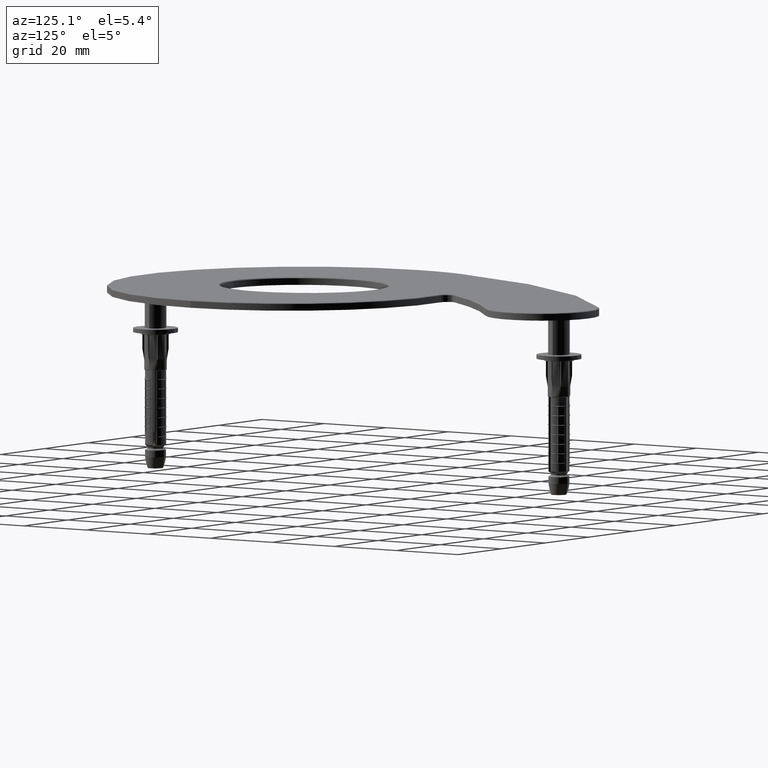
[diagram: clean part render]
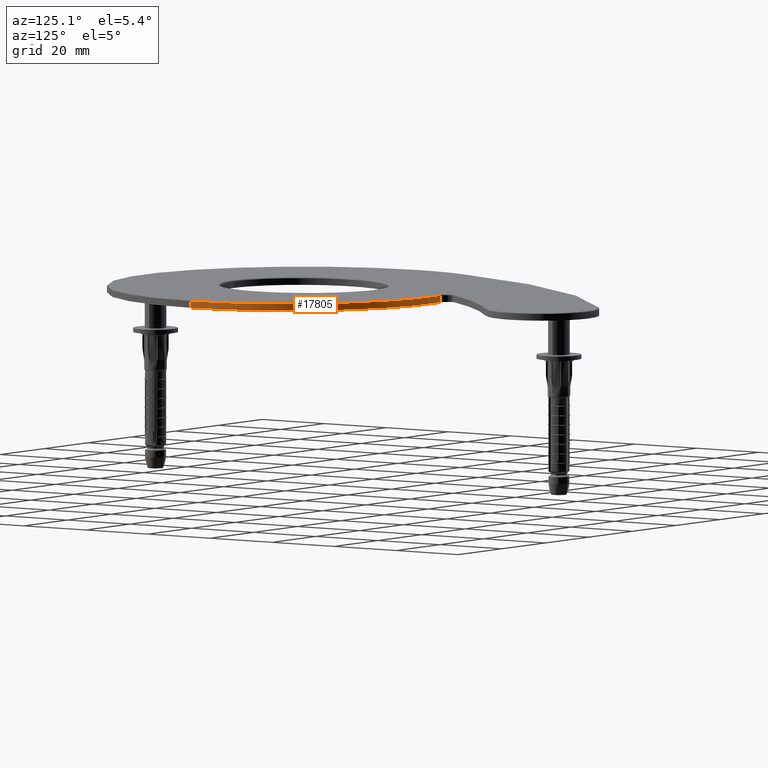
[diagram: same view with one face highlighted and labeled with its STEP entity id]
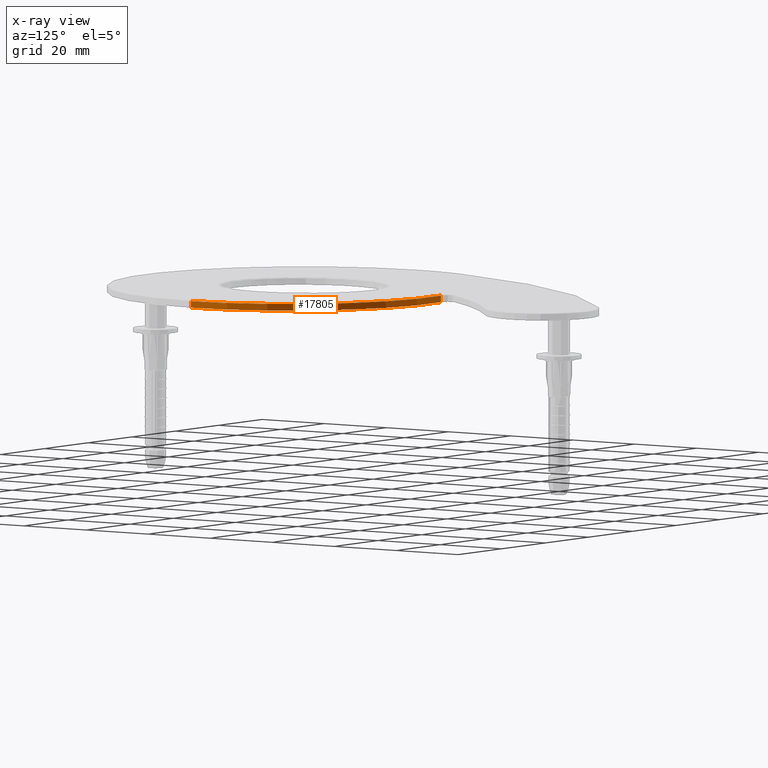
[diagram: x-ray of the same camera — body ghosted, the highlighted face saturated]
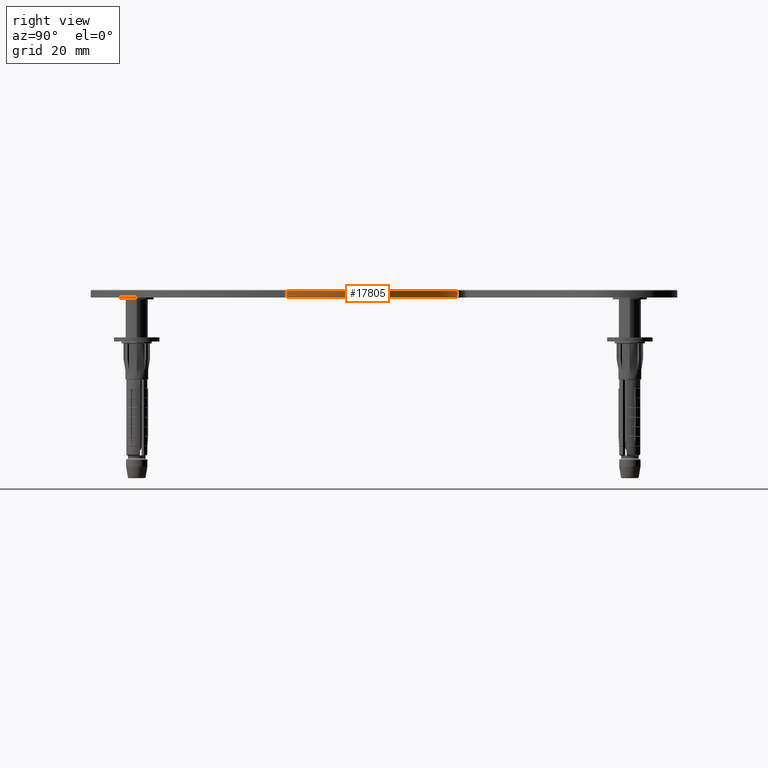
[diagram: same view with one face highlighted and labeled with its STEP entity id]
A machine part, auxiliary view. The second image highlights one B-rep face of the part: STEP entity #17805.
The next image is the same camera in x-ray: the body ghosted, the highlighted face saturated — about 0% of this face is hidden behind the body in this view.
A second angle (right view) of the same face is appended — the face is thin or edge-on in the first view.
In plain terms, the highlighted cylindrical surface (partial cylindrical patch) has radius 45.3165 mm, axis along (-0, -0, -1).
Its self-contained STEP definition (entity closure, byte-faithful):
#246 = CARTESIAN_POINT ( 'NONE',  ( 1.438146046878017392, 97.01194327648146043, 0.000000000000000000 ) ) ;
#639 = VERTEX_POINT ( 'NONE', #31760 ) ;
#934 = CARTESIAN_POINT ( 'NONE',  ( 6.683464366726754591, 52.00000000000002842, 0.000000000000000000 ) ) ;
#1706 = DIRECTION ( 'NONE',  ( -0.000000000000000000, -0.000000000000000000, -1.000000000000000000 ) ) ;
#1772 = ORIENTED_EDGE ( 'NONE', *, *, #19283, .T. ) ;
#1813 = AXIS2_PLACEMENT_3D ( 'NONE', #4889, #1706, #4764 ) ;
#2525 = DIRECTION ( 'NONE',  ( -0.000000000000000000, -0.000000000000000000, -1.000000000000000000 ) ) ;
#2936 = EDGE_CURVE ( 'NONE', #639, #19515, #33396, .T. ) ;
#3904 = EDGE_CURVE ( 'NONE', #37127, #19515, #5210, .T. ) ;
#4607 = DIRECTION ( 'NONE',  ( -1.000000000000000000, 0.000000000000000000, 0.000000000000000000 ) ) ;
#4764 = DIRECTION ( 'NONE',  ( -1.000000000000000000, 0.000000000000000000, 0.000000000000000000 ) ) ;
#4889 = CARTESIAN_POINT ( 'NONE',  ( 6.683464366726754591, 52.00000000000002842, 1.750000000000000000 ) ) ;
#5210 = LINE ( 'NONE', #35977, #34401 ) ;
#6138 = AXIS2_PLACEMENT_3D ( 'NONE', #38407, #10627, #4607 ) ;
#6576 = ORIENTED_EDGE ( 'NONE', *, *, #2936, .T. ) ;
#10627 = DIRECTION ( 'NONE',  ( -0.000000000000000000, -0.000000000000000000, -1.000000000000000000 ) ) ;
#12075 = DIRECTION ( 'NONE',  ( -0.000000000000000000, -0.000000000000000000, -1.000000000000000000 ) ) ;
#13204 = ORIENTED_EDGE ( 'NONE', *, *, #25012, .T. ) ;
#15860 = VERTEX_POINT ( 'NONE', #27169 ) ;
#16048 = CARTESIAN_POINT ( 'NONE',  ( 1.438146046878017392, 97.01194327648146043, 1.750000000000000000 ) ) ;
#17805 = ADVANCED_FACE ( 'NONE', ( #23201 ), #32318, .T. ) ;
#18728 = DIRECTION ( 'NONE',  ( -1.000000000000000000, 0.000000000000000000, 0.000000000000000000 ) ) ;
#19283 = EDGE_CURVE ( 'NONE', #37127, #15860, #31322, .T. ) ;
#19515 = VERTEX_POINT ( 'NONE', #246 ) ;
#20838 = CARTESIAN_POINT ( 'NONE',  ( 52.00000000000000711, 52.00000000000000000, 2.000000000000000000 ) ) ;
#22312 = DIRECTION ( 'NONE',  ( 0.000000000000000000, 0.000000000000000000, 1.000000000000000000 ) ) ;
#23201 = FACE_OUTER_BOUND ( 'NONE', #32752, .T. ) ;
#24323 = VECTOR ( 'NONE', #2525, 1000.000000000000000 ) ;
#25012 = EDGE_CURVE ( 'NONE', #15860, #639, #35327, .T. ) ;
#27169 = CARTESIAN_POINT ( 'NONE',  ( 52.00000000000000711, 52.00000000000000000, 1.750000000000000000 ) ) ;
#31322 = CIRCLE ( 'NONE', #1813, 45.31653563327324719 ) ;
#31760 = CARTESIAN_POINT ( 'NONE',  ( 52.00000000000000711, 52.00000000000000000, 0.000000000000000000 ) ) ;
#32318 = CYLINDRICAL_SURFACE ( 'NONE', #6138, 45.31653563327324719 ) ;
#32752 = EDGE_LOOP ( 'NONE', ( #33382, #1772, #13204, #6576 ) ) ;
#33382 = ORIENTED_EDGE ( 'NONE', *, *, #3904, .F. ) ;
#33396 = CIRCLE ( 'NONE', #34614, 45.31653563327324719 ) ;
#34401 = VECTOR ( 'NONE', #12075, 1000.000000000000000 ) ;
#34614 = AXIS2_PLACEMENT_3D ( 'NONE', #934, #22312, #18728 ) ;
#35327 = LINE ( 'NONE', #20838, #24323 ) ;
#35977 = CARTESIAN_POINT ( 'NONE',  ( 1.438146046878017392, 97.01194327648146043, 2.000000000000000000 ) ) ;
#37127 = VERTEX_POINT ( 'NONE', #16048 ) ;
#38407 = CARTESIAN_POINT ( 'NONE',  ( 6.683464366726754591, 52.00000000000002842, 2.000000000000000000 ) ) ;